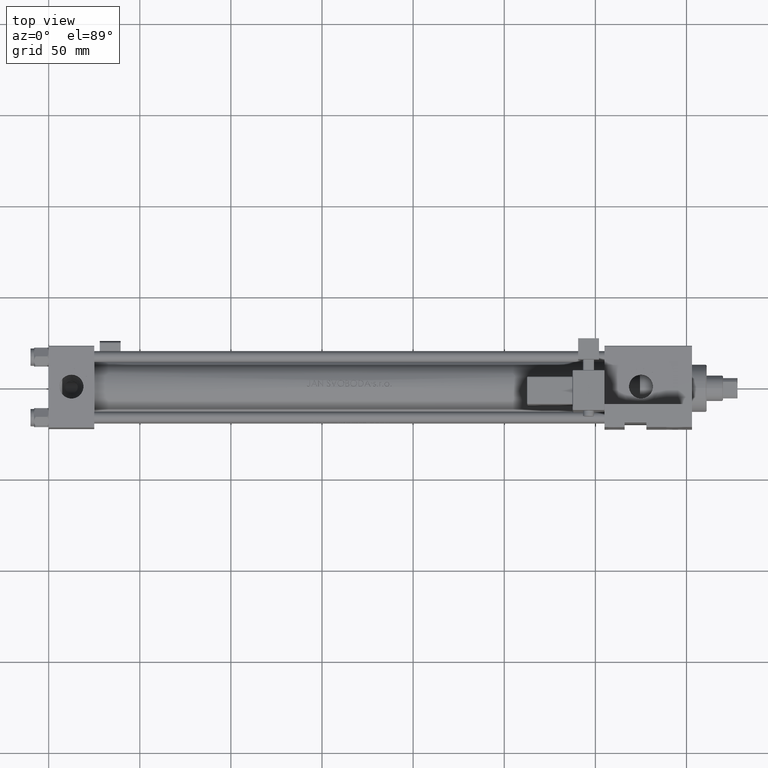
[diagram: clean part render]
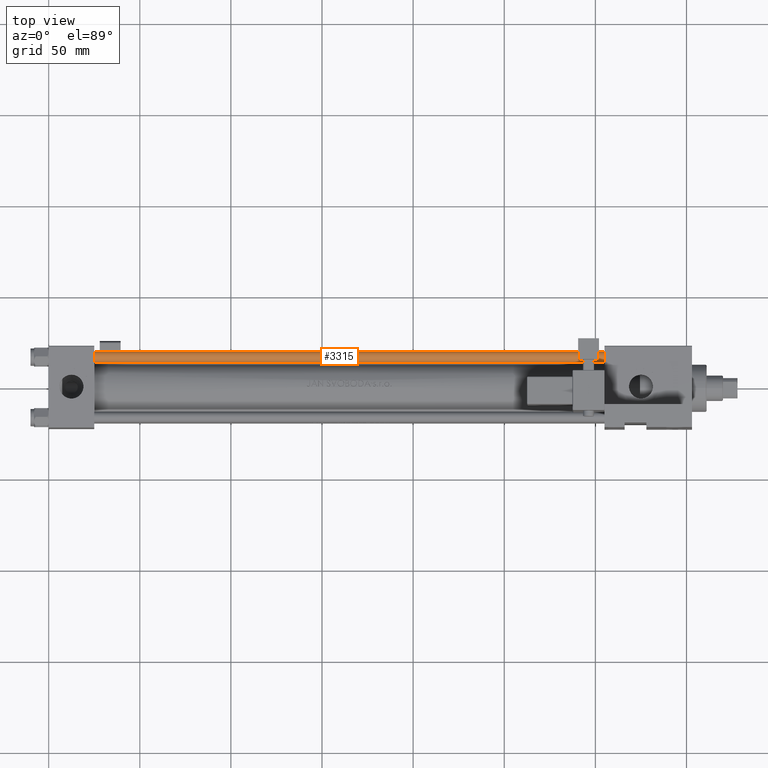
[diagram: same view with one face highlighted and labeled with its STEP entity id]
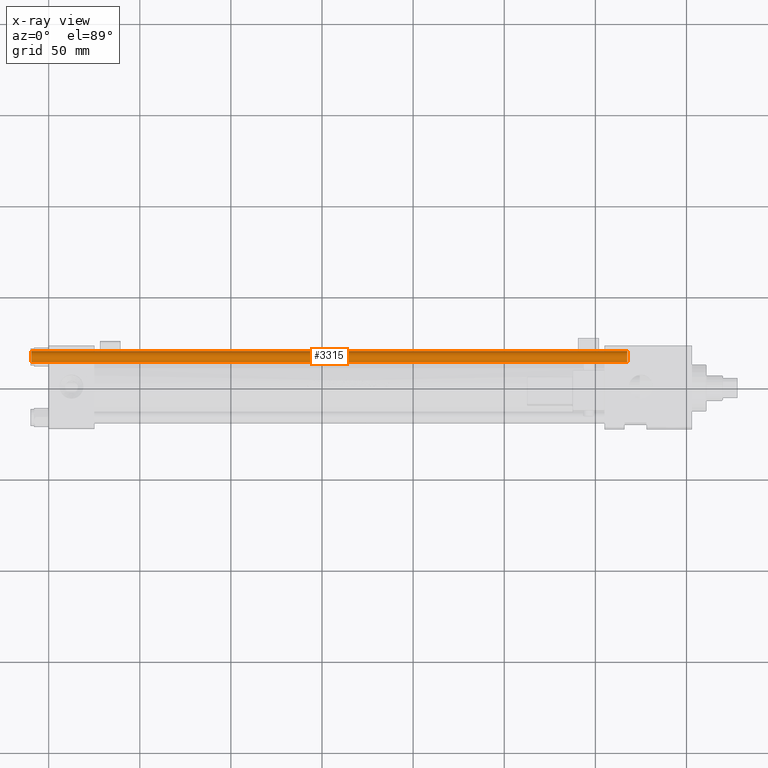
[diagram: x-ray of the same camera — body ghosted, the highlighted face saturated]
A machine part, top view. The second image highlights one B-rep face of the part: STEP entity #3315.
The next image is the same camera in x-ray: the body ghosted, the highlighted face saturated — about 0% of this face is hidden behind the body in this view.
In plain terms, the highlighted cylindrical surface (edge-blend (fillet) strip) has radius 3 mm, axis along (1, -0, 0).
Its self-contained STEP definition (entity closure, byte-faithful):
#3315 = ADVANCED_FACE ( 'NONE', ( #31404 ), #12202, .T. ) ;
#5634 = AXIS2_PLACEMENT_3D ( 'NONE', #23067, #38493, #43032 ) ;
#7920 = CARTESIAN_POINT ( 'NONE',  ( 0.000000000000000000, 0.000000000000000000, 327.5000000000000000 ) ) ;
#10413 = CARTESIAN_POINT ( 'NONE',  ( -3.000000000000000444, 0.000000000000000000, 0.5000000000000559552 ) ) ;
#10682 = EDGE_CURVE ( 'NONE', #10993, #40400, #14972, .T. ) ;
#10977 = VERTEX_POINT ( 'NONE', #10413 ) ;
#10993 = VERTEX_POINT ( 'NONE', #45295 ) ;
#11388 = LINE ( 'NONE', #11630, #13745 ) ;
#11630 = CARTESIAN_POINT ( 'NONE',  ( 3.000000000000000444, 3.673940397442060361E-16, 328.0000000000000000 ) ) ;
#11760 = AXIS2_PLACEMENT_3D ( 'NONE', #7920, #34960, #23330 ) ;
#12202 = CYLINDRICAL_SURFACE ( 'NONE', #5634, 3.000000000000000444 ) ;
#12666 = AXIS2_PLACEMENT_3D ( 'NONE', #48656, #25640, #29419 ) ;
#13745 = VECTOR ( 'NONE', #22993, 1000.000000000000000 ) ;
#14752 = CARTESIAN_POINT ( 'NONE',  ( -3.000000000000000444, 0.000000000000000000, 328.0000000000000000 ) ) ;
#14972 = CIRCLE ( 'NONE', #11760, 3.000000000000000444 ) ;
#15244 = LINE ( 'NONE', #14752, #20514 ) ;
#18196 = ORIENTED_EDGE ( 'NONE', *, *, #33711, .T. ) ;
#20514 = VECTOR ( 'NONE', #30407, 1000.000000000000000 ) ;
#22993 = DIRECTION ( 'NONE',  ( -0.000000000000000000, -0.000000000000000000, -1.000000000000000000 ) ) ;
#23067 = CARTESIAN_POINT ( 'NONE',  ( 0.000000000000000000, 0.000000000000000000, 328.0000000000000000 ) ) ;
#23330 = DIRECTION ( 'NONE',  ( 1.000000000000000000, 0.000000000000000000, 0.000000000000000000 ) ) ;
#25245 = EDGE_CURVE ( 'NONE', #40400, #10977, #15244, .T. ) ;
#25640 = DIRECTION ( 'NONE',  ( -0.000000000000000000, -0.000000000000000000, 1.000000000000000000 ) ) ;
#26031 = CARTESIAN_POINT ( 'NONE',  ( -3.000000000000000444, 0.000000000000000000, 327.5000000000000000 ) ) ;
#28124 = ORIENTED_EDGE ( 'NONE', *, *, #25245, .T. ) ;
#29419 = DIRECTION ( 'NONE',  ( 1.000000000000000000, 0.000000000000000000, 0.000000000000000000 ) ) ;
#29762 = EDGE_LOOP ( 'NONE', ( #30448, #33617, #28124, #18196 ) ) ;
#30407 = DIRECTION ( 'NONE',  ( -0.000000000000000000, -0.000000000000000000, -1.000000000000000000 ) ) ;
#30448 = ORIENTED_EDGE ( 'NONE', *, *, #42130, .F. ) ;
#31404 = FACE_OUTER_BOUND ( 'NONE', #29762, .T. ) ;
#31987 = VERTEX_POINT ( 'NONE', #48514 ) ;
#33617 = ORIENTED_EDGE ( 'NONE', *, *, #10682, .T. ) ;
#33711 = EDGE_CURVE ( 'NONE', #10977, #31987, #38453, .T. ) ;
#34960 = DIRECTION ( 'NONE',  ( 0.000000000000000000, 0.000000000000000000, -1.000000000000000000 ) ) ;
#38453 = CIRCLE ( 'NONE', #12666, 3.000000000000000444 ) ;
#38493 = DIRECTION ( 'NONE',  ( -0.000000000000000000, -0.000000000000000000, -1.000000000000000000 ) ) ;
#40400 = VERTEX_POINT ( 'NONE', #26031 ) ;
#42130 = EDGE_CURVE ( 'NONE', #10993, #31987, #11388, .T. ) ;
#43032 = DIRECTION ( 'NONE',  ( -1.000000000000000000, 0.000000000000000000, 0.000000000000000000 ) ) ;
#45295 = CARTESIAN_POINT ( 'NONE',  ( 3.000000000000000444, 3.673940397442060361E-16, 327.5000000000000000 ) ) ;
#48514 = CARTESIAN_POINT ( 'NONE',  ( 3.000000000000000444, 3.673940397442060361E-16, 0.5000000000000559552 ) ) ;
#48656 = CARTESIAN_POINT ( 'NONE',  ( 0.000000000000000000, 0.000000000000000000, 0.5000000000000559552 ) ) ;